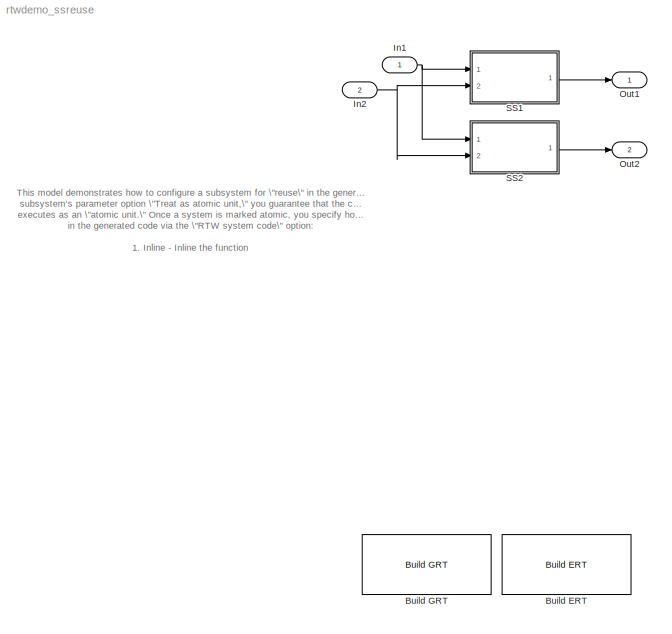
MODEL rtwdemo_ssreuse
KIND model
CONFIG PreLoadFcn = rtwdemo_ssreuse_data
BLOCK [Reference] Build ERT  REF=rtwdemowidgets/Build ERT
  Ports = []
  ShowPortLabels = on
  SourceBlock = rtwdemowidgets/Build ERT
  attrib_overrides = {}
BLOCK [Reference] Build GRT  REF=rtwdemowidgets/Build GRT
  Ports = []
  ShowPortLabels = on
  SourceBlock = rtwdemowidgets/Build GRT
  attrib_overrides = {}
BLOCK [Inport] In1
  IconDisplay = Port number
  LatchInput = off
  Port = 1
BLOCK [Inport] In2
  IconDisplay = Port number
  LatchInput = off
  Port = 2
BLOCK [Outport] Out1
  BusOutputAsStruct = off
  IconDisplay = Port number
BLOCK [Outport] Out2
  BusOutputAsStruct = off
  IconDisplay = Port number
  Port = 2
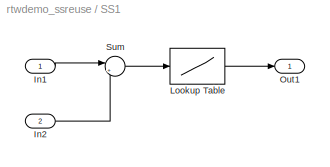
BLOCK [SubSystem] SS1
  MaskCallbackString = |
  MaskDescription = Example to demonstrate code reuse.  This example has two parameters for a lookup table.
  MaskEnableString = on,on
  MaskIconFrame = on
  MaskIconOpaque = on
  MaskIconRotate = none
  MaskIconUnits = autoscale
  MaskPromptString = Break points (X data):|Output values (Y data):
  MaskStyleString = edit,edit
  MaskTabNameString = ,
  MaskToolTipString = on,on
  MaskTunableValueString = on,on
  MaskType = SSDemo
  MaskValueString = T1Break|T1Data
  MaskVarAliasString = ,
  MaskVariables = x=@1;y=@2;
  MaskVisibilityString = on,on
  MinAlgLoopOccurrences = off
  Ports = [2, 1]
  PropExecContextAcrossSSBoundary = on
  RTWFcnName = myfun
  RTWFcnNameOpts = User specified
  RTWFileName = myfile
  RTWSystemCode = Reusable function
  TreatAsAtomicUnit = on
BLOCK [Inport] SS1/In1
  IconDisplay = Port number
  LatchInput = off
  Port = 1
BLOCK [Inport] SS1/In2
  IconDisplay = Port number
  LatchInput = off
  Port = 2
BLOCK [Lookup] SS1/Lookup Table
  DialogController = Simulink.DDGSource
  InputValues = x
  OutputValues = y
  SaturateOnIntegerOverflow = off
BLOCK [Outport] SS1/Out1
  BusOutputAsStruct = off
  IconDisplay = Port number
BLOCK [Sum] SS1/Sum
  IconShape = round
  InputSameDT = off
  Inputs = |++
  OutDataTypeMode = Inherit via internal rule
  Ports = [2, 1]
  SaturateOnIntegerOverflow = off
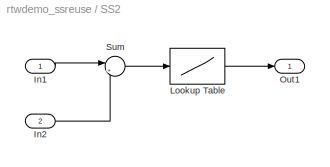
BLOCK [SubSystem] SS2
  MaskCallbackString = |
  MaskDescription = Example to demonstrate code reuse.  This example has two parameters for a lookup table.
  MaskEnableString = on,on
  MaskIconFrame = on
  MaskIconOpaque = on
  MaskIconRotate = none
  MaskIconUnits = autoscale
  MaskPromptString = Break points (X data):|Output values (Y data):
  MaskStyleString = edit,edit
  MaskTabNameString = ,
  MaskToolTipString = on,on
  MaskTunableValueString = on,on
  MaskType = SSDemo
  MaskValueString = T2Break|T2Data
  MaskVarAliasString = ,
  MaskVariables = x=@1;y=@2;
  MaskVisibilityString = on,on
  MinAlgLoopOccurrences = off
  Ports = [2, 1]
  PropExecContextAcrossSSBoundary = on
  RTWFcnName = myfun
  RTWFcnNameOpts = User specified
  RTWFileName = myfile
  RTWSystemCode = Reusable function
  TreatAsAtomicUnit = on
BLOCK [Inport] SS2/In1
  IconDisplay = Port number
  LatchInput = off
  Port = 1
BLOCK [Inport] SS2/In2
  IconDisplay = Port number
  LatchInput = off
  Port = 2
BLOCK [Lookup] SS2/Lookup Table
  DialogController = Simulink.DDGSource
  InputValues = x
  OutputValues = y
  SaturateOnIntegerOverflow = off
BLOCK [Outport] SS2/Out1
  BusOutputAsStruct = off
  IconDisplay = Port number
BLOCK [Sum] SS2/Sum
  IconShape = round
  InputSameDT = off
  Inputs = |++
  OutDataTypeMode = Inherit via internal rule
  Ports = [2, 1]
  SaturateOnIntegerOverflow = off
ANNOTATION (root): This model demonstrates how to configure a subsystem for \"reuse\" in the generated code. By selecting the\nsubsystem's parameter option \"Treat as atomic unit,\" you guarantee that the code within that subsystem\nexecutes as an \"atomic unit.\" Once a system is marked atomic, you specify how the subsystem is represented\nin the generated code via the \"RTW system code\" option:\n\n1. Inline - Inl...<+874ch>
NET In1:1 -> SS1:1, SS2:1
NET In2:1 -> SS1:2, SS2:2
LINE SS1/In1:1 -> SS1/Sum:1
LINE SS1/In2:1 -> SS1/Sum:2
LINE SS1/Lookup Table:1 -> SS1/Out1:1
LINE SS1/Sum:1 -> SS1/Lookup Table:1
LINE SS1:1 -> Out1:1
LINE SS2/In1:1 -> SS2/Sum:1
LINE SS2/In2:1 -> SS2/Sum:2
LINE SS2/Lookup Table:1 -> SS2/Out1:1
LINE SS2/Sum:1 -> SS2/Lookup Table:1
LINE SS2:1 -> Out2:1
note: NET lines group one-source signal fan-out (src -> all destinations, sorted); 1:1 wires keep LINE
